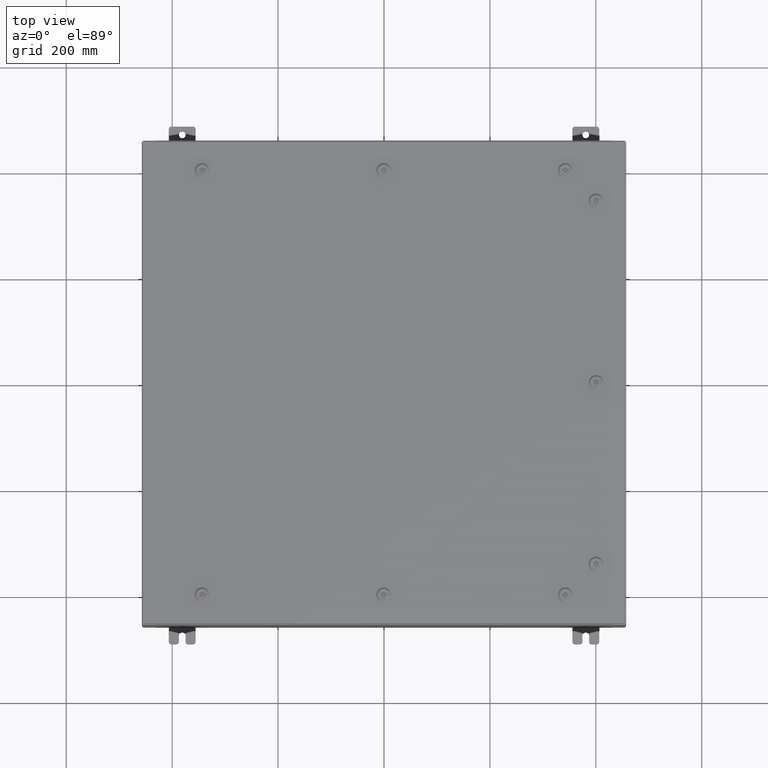
[diagram: clean part render]
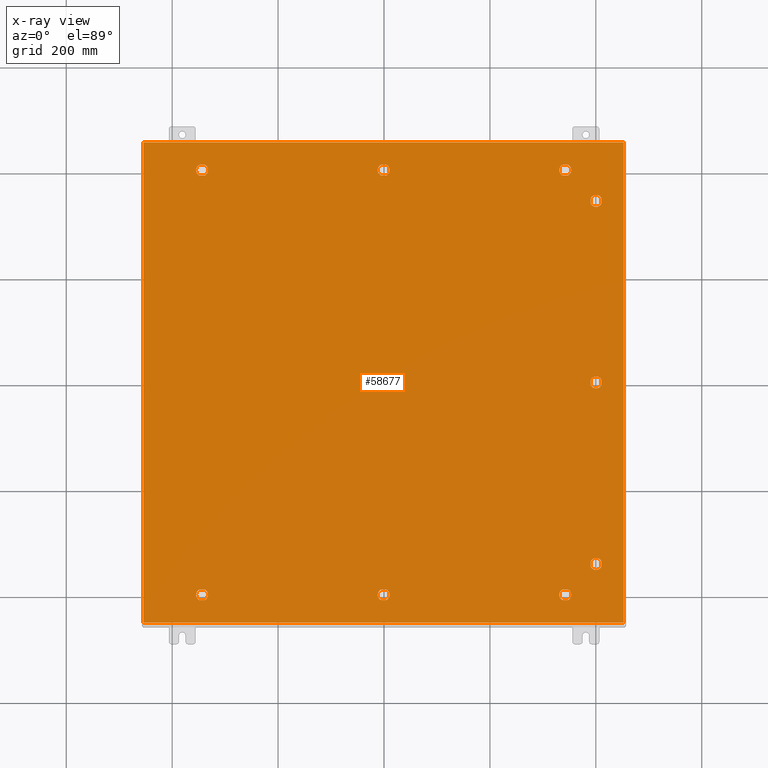
[diagram: x-ray — body ghosted, one internal face saturated and labeled with its STEP entity id]
A machine part, top view, then the same camera in x-ray: the body is ghosted and one INTERNAL B-rep face — a face not visible from any outside direction — is saturated and labeled: STEP entity #58677.
In plain terms, the highlighted planar face has unit normal (0, 0, -1).
Its self-contained STEP definition (entity closure, byte-faithful):
#23 = VERTEX_POINT ( 'NONE', #1915 ) ;
#231 = CARTESIAN_POINT ( 'NONE',  ( -13.49999999999998600, 15.78779999999999500, -0.07470000000000003000 ) ) ;
#787 = LINE ( 'NONE', #4240, #13164 ) ;
#1108 = VERTEX_POINT ( 'NONE', #17900 ) ;
#1111 = VERTEX_POINT ( 'NONE', #55005 ) ;
#1247 = VERTEX_POINT ( 'NONE', #13453 ) ;
#1248 = AXIS2_PLACEMENT_3D ( 'NONE', #33907, #2197, #39274 ) ;
#1444 = ORIENTED_EDGE ( 'NONE', *, *, #16349, .T. ) ;
#1453 = CARTESIAN_POINT ( 'NONE',  ( 17.84979999999999800, -17.84979999999999800, -0.07470000000000019700 ) ) ;
#1500 = CARTESIAN_POINT ( 'NONE',  ( -13.30054762473209400, 16.18279999999998600, -0.07470000000000003000 ) ) ;
#1589 = EDGE_CURVE ( 'NONE', #66922, #4565, #2022, .T. ) ;
#1915 = CARTESIAN_POINT ( 'NONE',  ( 13.69945237526786900, -15.39280000000000300, -0.07470000000000003000 ) ) ;
#2022 = CIRCLE ( 'NONE', #52061, 0.4424999999999983400 ) ;
#2197 = DIRECTION ( 'NONE',  ( -0.0000000000000000000, -0.0000000000000000000, 1.000000000000000000 ) ) ;
#2362 = VECTOR ( 'NONE', #53537, 39.37007874015748100 ) ;
#2403 = ORIENTED_EDGE ( 'NONE', *, *, #10582, .T. ) ;
#2415 = CARTESIAN_POINT ( 'NONE',  ( 16.18280000000000000, 0.1994523752679009100, -0.07470000000000003000 ) ) ;
#2860 = CARTESIAN_POINT ( 'NONE',  ( 16.18280000000000400, -13.69945237526790100, -0.07470000000000003000 ) ) ;
#2877 = ORIENTED_EDGE ( 'NONE', *, *, #47835, .T. ) ;
#2879 = CARTESIAN_POINT ( 'NONE',  ( 15.39280000000001500, -13.69945237526790600, -0.07470000000000003000 ) ) ;
#2928 = DIRECTION ( 'NONE',  ( 1.000000000000000000, 0.0000000000000000000, 0.0000000000000000000 ) ) ;
#3449 = CARTESIAN_POINT ( 'NONE',  ( 0.1994523752679067700, 16.18279999999998600, -0.07470000000000003000 ) ) ;
#3908 = EDGE_CURVE ( 'NONE', #4565, #1247, #15082, .T. ) ;
#3955 = CIRCLE ( 'NONE', #5712, 0.4424999999999983400 ) ;
#4078 = FACE_OUTER_BOUND ( 'NONE', #59002, .T. ) ;
#4143 = DIRECTION ( 'NONE',  ( -0.0000000000000000000, -0.0000000000000000000, 1.000000000000000000 ) ) ;
#4170 = EDGE_CURVE ( 'NONE', #39908, #4822, #22565, .T. ) ;
#4240 = CARTESIAN_POINT ( 'NONE',  ( 17.84979999999999800, 17.84980000000000200, -0.07469999999999910000 ) ) ;
#4395 = CARTESIAN_POINT ( 'NONE',  ( 16.18280000000000000, 13.69945237526790100, -0.07470000000000000300 ) ) ;
#4466 = VECTOR ( 'NONE', #67123, 39.37007874015748100 ) ;
#4565 = VERTEX_POINT ( 'NONE', #41763 ) ;
#4654 = VECTOR ( 'NONE', #39287, 39.37007874015748100 ) ;
#4747 = CARTESIAN_POINT ( 'NONE',  ( 15.78780000000000600, 13.50000000000001800, -0.07470000000000003000 ) ) ;
#4822 = VERTEX_POINT ( 'NONE', #13106 ) ;
#5535 = CIRCLE ( 'NONE', #67977, 0.4424999999999973400 ) ;
#5555 = DIRECTION ( 'NONE',  ( -1.000000000000000000, 0.0000000000000000000, 0.0000000000000000000 ) ) ;
#5682 = CARTESIAN_POINT ( 'NONE',  ( 13.49999999999998600, 15.78779999999999500, -0.07470000000000003000 ) ) ;
#5696 = ORIENTED_EDGE ( 'NONE', *, *, #46977, .T. ) ;
#5712 = AXIS2_PLACEMENT_3D ( 'NONE', #12569, #49694, #17902 ) ;
#5758 = FACE_BOUND ( 'NONE', #55815, .T. ) ;
#5874 = LINE ( 'NONE', #19224, #60551 ) ;
#6024 = EDGE_CURVE ( 'NONE', #48252, #23158, #38210, .T. ) ;
#6149 = EDGE_CURVE ( 'NONE', #29959, #21434, #33180, .T. ) ;
#6406 = EDGE_CURVE ( 'NONE', #46120, #34764, #9136, .T. ) ;
#6522 = EDGE_CURVE ( 'NONE', #44460, #52909, #46468, .T. ) ;
#7487 = DIRECTION ( 'NONE',  ( -0.0000000000000000000, -0.0000000000000000000, 1.000000000000000000 ) ) ;
#7568 = CARTESIAN_POINT ( 'NONE',  ( 0.0000000000000000000, 0.0000000000000000000, -0.07470000000000000300 ) ) ;
#7815 = CARTESIAN_POINT ( 'NONE',  ( -17.84979999999999500, 17.84980000000000200, -0.07470000000000000300 ) ) ;
#7921 = LINE ( 'NONE', #1453, #64287 ) ;
#7942 = DIRECTION ( 'NONE',  ( -0.0000000000000000000, -0.0000000000000000000, 1.000000000000000000 ) ) ;
#8169 = CIRCLE ( 'NONE', #58159, 0.4424999999999961700 ) ;
#8204 = ORIENTED_EDGE ( 'NONE', *, *, #32041, .T. ) ;
#8571 = DIRECTION ( 'NONE',  ( -1.000000000000000000, -1.095739467627832000E-014, 0.0000000000000000000 ) ) ;
#8805 = ORIENTED_EDGE ( 'NONE', *, *, #1589, .T. ) ;
#8814 = DIRECTION ( 'NONE',  ( 0.0000000000000000000, -1.000000000000000000, 0.0000000000000000000 ) ) ;
#9136 = CIRCLE ( 'NONE', #49119, 0.4424999999999973400 ) ;
#9405 = VECTOR ( 'NONE', #57345, 39.37007874015748100 ) ;
#9646 = CARTESIAN_POINT ( 'NONE',  ( -0.1994523752678689600, -15.39279999999999900, -0.07470000000000003000 ) ) ;
#10063 = DIRECTION ( 'NONE',  ( -1.000000000000000000, 0.0000000000000000000, 0.0000000000000000000 ) ) ;
#10485 = DIRECTION ( 'NONE',  ( 1.000000000000000000, 1.095739467627836300E-014, 0.0000000000000000000 ) ) ;
#10559 = DIRECTION ( 'NONE',  ( -0.0000000000000000000, -0.0000000000000000000, 1.000000000000000000 ) ) ;
#10582 = EDGE_CURVE ( 'NONE', #54201, #20133, #12077, .T. ) ;
#10653 = CARTESIAN_POINT ( 'NONE',  ( 16.18280000000000400, 13.30054762473213300, -0.07470000000000003000 ) ) ;
#10994 = DIRECTION ( 'NONE',  ( -1.000000000000000000, 0.0000000000000000000, 0.0000000000000000000 ) ) ;
#11071 = EDGE_CURVE ( 'NONE', #21434, #45436, #26991, .T. ) ;
#11616 = CARTESIAN_POINT ( 'NONE',  ( -13.30054762473210200, 15.39279999999999900, -0.07470000000000000300 ) ) ;
#11822 = EDGE_CURVE ( 'NONE', #43635, #21289, #46972, .T. ) ;
#12077 = CIRCLE ( 'NONE', #59400, 0.4424999999999983400 ) ;
#12212 = CARTESIAN_POINT ( 'NONE',  ( -13.30054762473210200, -15.39280000000000300, -0.07470000000000003000 ) ) ;
#12551 = VERTEX_POINT ( 'NONE', #50966 ) ;
#12569 = CARTESIAN_POINT ( 'NONE',  ( -13.49999999999998600, 15.78779999999999500, -0.07470000000000003000 ) ) ;
#12889 = DIRECTION ( 'NONE',  ( -1.000000000000000000, 0.0000000000000000000, -0.0000000000000000000 ) ) ;
#12944 = VECTOR ( 'NONE', #60795, 39.37007874015748100 ) ;
#13061 = EDGE_CURVE ( 'NONE', #51305, #49667, #61730, .T. ) ;
#13106 = CARTESIAN_POINT ( 'NONE',  ( -0.1994523752678689600, 15.39279999999999900, -0.07470000000000003000 ) ) ;
#13164 = VECTOR ( 'NONE', #36429, 39.37007874015748100 ) ;
#13169 = ORIENTED_EDGE ( 'NONE', *, *, #64234, .F. ) ;
#13185 = EDGE_CURVE ( 'NONE', #1111, #54415, #16137, .T. ) ;
#13233 = CIRCLE ( 'NONE', #37587, 0.4424999999999973400 ) ;
#13351 = VECTOR ( 'NONE', #34914, 39.37007874015748100 ) ;
#13453 = CARTESIAN_POINT ( 'NONE',  ( 13.69945237526786900, 15.39279999999999900, -0.07470000000000003000 ) ) ;
#13663 = CARTESIAN_POINT ( 'NONE',  ( 0.1994523752679069900, 16.18279999999998600, -0.07470000000000003000 ) ) ;
#13960 = ORIENTED_EDGE ( 'NONE', *, *, #11071, .T. ) ;
#14106 = CARTESIAN_POINT ( 'NONE',  ( 15.78780000000000600, 1.529834876451990400E-014, -0.07470000000000003000 ) ) ;
#14393 = EDGE_CURVE ( 'NONE', #23, #12551, #45113, .T. ) ;
#15048 = ORIENTED_EDGE ( 'NONE', *, *, #21098, .T. ) ;
#15082 = LINE ( 'NONE', #53888, #41669 ) ;
#15706 = AXIS2_PLACEMENT_3D ( 'NONE', #27856, #64902, #33157 ) ;
#15826 = AXIS2_PLACEMENT_3D ( 'NONE', #27508, #64549, #32805 ) ;
#15984 = CARTESIAN_POINT ( 'NONE',  ( 13.49999999999998600, 15.78779999999999500, -0.07470000000000003000 ) ) ;
#16137 = CIRCLE ( 'NONE', #51497, 0.4424999999999983400 ) ;
#16238 = AXIS2_PLACEMENT_3D ( 'NONE', #5682, #42765, #10994 ) ;
#16349 = EDGE_CURVE ( 'NONE', #21289, #37309, #66461, .T. ) ;
#16961 = CARTESIAN_POINT ( 'NONE',  ( -0.1994523752678657700, 16.18279999999999000, -0.07470000000000003000 ) ) ;
#17185 = DIRECTION ( 'NONE',  ( 0.0000000000000000000, 1.000000000000000000, 0.0000000000000000000 ) ) ;
#17273 = CARTESIAN_POINT ( 'NONE',  ( 0.1994523752678995500, -15.39279999999999900, -0.07470000000000003000 ) ) ;
#17548 = CARTESIAN_POINT ( 'NONE',  ( 16.18280000000000400, -13.69945237526790100, -0.07470000000000003000 ) ) ;
#17706 = DIRECTION ( 'NONE',  ( -0.0000000000000000000, -0.0000000000000000000, 1.000000000000000000 ) ) ;
#17822 = ORIENTED_EDGE ( 'NONE', *, *, #31326, .T. ) ;
#17900 = CARTESIAN_POINT ( 'NONE',  ( 0.4425000000000126100, -15.78779999999999500, -0.07470000000000003000 ) ) ;
#17902 = DIRECTION ( 'NONE',  ( -1.000000000000000000, 0.0000000000000000000, 0.0000000000000000000 ) ) ;
#17906 = VERTEX_POINT ( 'NONE', #13663 ) ;
#17966 = EDGE_CURVE ( 'NONE', #33553, #65414, #5874, .T. ) ;
#17991 = PLANE ( 'NONE',  #24965 ) ;
#18157 = FACE_BOUND ( 'NONE', #40510, .T. ) ;
#18236 = VECTOR ( 'NONE', #61930, 39.37007874015748100 ) ;
#18346 = VERTEX_POINT ( 'NONE', #42650 ) ;
#18708 = EDGE_CURVE ( 'NONE', #25845, #58668, #26524, .T. ) ;
#18869 = CARTESIAN_POINT ( 'NONE',  ( 1.529834876451987200E-014, 15.78779999999999500, -0.07470000000000003000 ) ) ;
#18934 = CARTESIAN_POINT ( 'NONE',  ( 13.69945237526786700, 16.18279999999999000, -0.07470000000000003000 ) ) ;
#18977 = CARTESIAN_POINT ( 'NONE',  ( 13.30054762473209400, 16.18279999999998600, -0.07470000000000003000 ) ) ;
#19224 = CARTESIAN_POINT ( 'NONE',  ( -17.84979999999999500, 17.84979999999999800, -0.07470000000000019700 ) ) ;
#19435 = DIRECTION ( 'NONE',  ( -1.000000000000000000, 0.0000000000000000000, 0.0000000000000000000 ) ) ;
#19443 = VECTOR ( 'NONE', #54929, 39.37007874015748100 ) ;
#19458 = CIRCLE ( 'NONE', #15706, 0.4424999999999983400 ) ;
#19575 = EDGE_CURVE ( 'NONE', #45066, #64958, #29737, .T. ) ;
#19804 = ORIENTED_EDGE ( 'NONE', *, *, #17966, .F. ) ;
#19812 = FACE_BOUND ( 'NONE', #64238, .T. ) ;
#20115 = CARTESIAN_POINT ( 'NONE',  ( 15.78780000000000800, -13.50000000000001800, -0.07470000000000003000 ) ) ;
#20133 = VERTEX_POINT ( 'NONE', #68700 ) ;
#20953 = CARTESIAN_POINT ( 'NONE',  ( 1.529834876451987200E-014, -15.78779999999999500, -0.07470000000000003000 ) ) ;
#21045 = CIRCLE ( 'NONE', #62297, 0.4424999999999983400 ) ;
#21098 = EDGE_CURVE ( 'NONE', #23158, #60486, #64066, .T. ) ;
#21289 = VERTEX_POINT ( 'NONE', #40035 ) ;
#21314 = DIRECTION ( 'NONE',  ( -1.000000000000000000, 0.0000000000000000000, 0.0000000000000000000 ) ) ;
#21421 = ORIENTED_EDGE ( 'NONE', *, *, #19575, .T. ) ;
#21434 = VERTEX_POINT ( 'NONE', #9646 ) ;
#21657 = CARTESIAN_POINT ( 'NONE',  ( 15.39280000000001000, -0.1994523752678671600, -0.07470000000000003000 ) ) ;
#21663 = ORIENTED_EDGE ( 'NONE', *, *, #22741, .T. ) ;
#21735 = CARTESIAN_POINT ( 'NONE',  ( -13.30054762473209400, -16.18279999999999000, -0.07470000000000003000 ) ) ;
#21796 = VECTOR ( 'NONE', #54903, 39.37007874015748100 ) ;
#22514 = ORIENTED_EDGE ( 'NONE', *, *, #13061, .T. ) ;
#22535 = CARTESIAN_POINT ( 'NONE',  ( 1.529834876451987200E-014, 15.78779999999999500, -0.07470000000000003000 ) ) ;
#22565 = CIRCLE ( 'NONE', #61808, 0.4424999999999969000 ) ;
#22658 = EDGE_LOOP ( 'NONE', ( #17822, #40426, #38925, #25021 ) ) ;
#22741 = EDGE_CURVE ( 'NONE', #31478, #66922, #42431, .T. ) ;
#22831 = EDGE_LOOP ( 'NONE', ( #1444, #56716, #43085, #30031 ) ) ;
#23116 = CARTESIAN_POINT ( 'NONE',  ( 15.78780000000000800, -13.50000000000001800, -0.07470000000000003000 ) ) ;
#23158 = VERTEX_POINT ( 'NONE', #12212 ) ;
#23199 = ORIENTED_EDGE ( 'NONE', *, *, #13185, .T. ) ;
#23308 = ORIENTED_EDGE ( 'NONE', *, *, #4170, .T. ) ;
#23849 = AXIS2_PLACEMENT_3D ( 'NONE', #20115, #57191, #25431 ) ;
#24195 = DIRECTION ( 'NONE',  ( -1.000000000000000000, 0.0000000000000000000, 0.0000000000000000000 ) ) ;
#24443 = CARTESIAN_POINT ( 'NONE',  ( 15.39280000000001400, 0.1994523752679053800, -0.07470000000000003000 ) ) ;
#24536 = EDGE_LOOP ( 'NONE', ( #63537, #5696, #21663, #8805, #64074 ) ) ;
#24633 = CIRCLE ( 'NONE', #15826, 0.4424999999999961700 ) ;
#24869 = CARTESIAN_POINT ( 'NONE',  ( -13.30054762473210200, 15.39279999999999900, -0.07470000000000003000 ) ) ;
#24965 = AXIS2_PLACEMENT_3D ( 'NONE', #7568, #44667, #12889 ) ;
#25021 = ORIENTED_EDGE ( 'NONE', *, *, #42491, .T. ) ;
#25140 = LINE ( 'NONE', #58881, #51744 ) ;
#25431 = DIRECTION ( 'NONE',  ( -1.000000000000000000, 0.0000000000000000000, 0.0000000000000000000 ) ) ;
#25481 = AXIS2_PLACEMENT_3D ( 'NONE', #27268, #64318, #32567 ) ;
#25511 = VERTEX_POINT ( 'NONE', #2860 ) ;
#25845 = VERTEX_POINT ( 'NONE', #68371 ) ;
#26071 = AXIS2_PLACEMENT_3D ( 'NONE', #4747, #41833, #10063 ) ;
#26250 = DIRECTION ( 'NONE',  ( -0.0000000000000000000, -0.0000000000000000000, 1.000000000000000000 ) ) ;
#26281 = DIRECTION ( 'NONE',  ( -1.000000000000000000, 0.0000000000000000000, 0.0000000000000000000 ) ) ;
#26283 = EDGE_CURVE ( 'NONE', #49667, #36992, #8169, .T. ) ;
#26390 = CARTESIAN_POINT ( 'NONE',  ( 15.78780000000000600, 13.50000000000001800, -0.07470000000000003000 ) ) ;
#26524 = LINE ( 'NONE', #2879, #67105 ) ;
#26637 = DIRECTION ( 'NONE',  ( -0.0000000000000000000, -0.0000000000000000000, 1.000000000000000000 ) ) ;
#26850 = ORIENTED_EDGE ( 'NONE', *, *, #6522, .T. ) ;
#26991 = CIRCLE ( 'NONE', #66111, 0.4424999999999969000 ) ;
#27268 = CARTESIAN_POINT ( 'NONE',  ( -13.49999999999998600, -15.78779999999999900, -0.07470000000000003000 ) ) ;
#27437 = DIRECTION ( 'NONE',  ( 1.000000000000000000, 0.0000000000000000000, 0.0000000000000000000 ) ) ;
#27508 = CARTESIAN_POINT ( 'NONE',  ( 13.49999999999998600, -15.78779999999999900, -0.07470000000000003000 ) ) ;
#27856 = CARTESIAN_POINT ( 'NONE',  ( 13.49999999999998600, -15.78779999999999900, -0.07470000000000003000 ) ) ;
#27868 = DIRECTION ( 'NONE',  ( -1.000000000000000000, 4.938934225833725800E-015, 0.0000000000000000000 ) ) ;
#28087 = CARTESIAN_POINT ( 'NONE',  ( 15.78780000000000600, 1.529834876451990400E-014, -0.07470000000000003000 ) ) ;
#28124 = VECTOR ( 'NONE', #62914, 39.37007874015748100 ) ;
#28148 = CARTESIAN_POINT ( 'NONE',  ( 17.84979999999999800, -17.84979999999999800, -0.07470000000000000300 ) ) ;
#28195 = CARTESIAN_POINT ( 'NONE',  ( -17.84979999999999800, -17.84979999999999800, -0.07470000000000000300 ) ) ;
#28463 = DIRECTION ( 'NONE',  ( -1.000000000000000000, 0.0000000000000000000, 0.0000000000000000000 ) ) ;
#28605 = CARTESIAN_POINT ( 'NONE',  ( 15.39280000000001400, 13.69945237526790600, -0.07470000000000003000 ) ) ;
#28642 = EDGE_CURVE ( 'NONE', #56011, #1108, #5535, .T. ) ;
#28653 = LINE ( 'NONE', #42258, #30274 ) ;
#29013 = CARTESIAN_POINT ( 'NONE',  ( 15.39280000000001400, 0.1994523752679064900, -0.07470000000000003000 ) ) ;
#29068 = CARTESIAN_POINT ( 'NONE',  ( 17.84979999999999800, 17.84980000000000200, -0.07470000000000000300 ) ) ;
#29314 = VECTOR ( 'NONE', #54660, 39.37007874015748100 ) ;
#29737 = LINE ( 'NONE', #31170, #28124 ) ;
#29745 = DIRECTION ( 'NONE',  ( -1.095739467627836300E-014, -1.000000000000000000, 0.0000000000000000000 ) ) ;
#29959 = VERTEX_POINT ( 'NONE', #61939 ) ;
#30031 = ORIENTED_EDGE ( 'NONE', *, *, #11822, .T. ) ;
#30055 = CARTESIAN_POINT ( 'NONE',  ( 13.30054762473210200, -15.39280000000000300, -0.07470000000000003000 ) ) ;
#30274 = VECTOR ( 'NONE', #10485, 39.37007874015748100 ) ;
#30391 = EDGE_CURVE ( 'NONE', #34764, #17906, #63400, .T. ) ;
#30459 = CIRCLE ( 'NONE', #32675, 0.4424999999999983400 ) ;
#31170 = CARTESIAN_POINT ( 'NONE',  ( -13.30054762473209400, 16.18279999999998600, -0.07470000000000003000 ) ) ;
#31326 = EDGE_CURVE ( 'NONE', #34369, #25845, #21045, .T. ) ;
#31478 = VERTEX_POINT ( 'NONE', #18934 ) ;
#31701 = DIRECTION ( 'NONE',  ( -1.000000000000000000, 0.0000000000000000000, 0.0000000000000000000 ) ) ;
#32008 = CIRCLE ( 'NONE', #1248, 0.4424999999999961700 ) ;
#32041 = EDGE_CURVE ( 'NONE', #12551, #51305, #19458, .T. ) ;
#32241 = FACE_BOUND ( 'NONE', #49702, .T. ) ;
#32567 = DIRECTION ( 'NONE',  ( -1.000000000000000000, 0.0000000000000000000, 0.0000000000000000000 ) ) ;
#32675 = AXIS2_PLACEMENT_3D ( 'NONE', #39251, #7487, #44585 ) ;
#32805 = DIRECTION ( 'NONE',  ( -1.000000000000000000, 0.0000000000000000000, 0.0000000000000000000 ) ) ;
#33044 = ORIENTED_EDGE ( 'NONE', *, *, #42345, .T. ) ;
#33157 = DIRECTION ( 'NONE',  ( -1.000000000000000000, 0.0000000000000000000, 0.0000000000000000000 ) ) ;
#33180 = LINE ( 'NONE', #17273, #61365 ) ;
#33253 = DIRECTION ( 'NONE',  ( -1.000000000000000000, 0.0000000000000000000, 0.0000000000000000000 ) ) ;
#33401 = DIRECTION ( 'NONE',  ( -1.000000000000000000, 1.776356839400250500E-015, 0.0000000000000000000 ) ) ;
#33552 = CARTESIAN_POINT ( 'NONE',  ( 13.30054762473209400, 16.18279999999998600, -0.07470000000000000300 ) ) ;
#33553 = VERTEX_POINT ( 'NONE', #7815 ) ;
#33905 = FACE_BOUND ( 'NONE', #22831, .T. ) ;
#33907 = CARTESIAN_POINT ( 'NONE',  ( 13.49999999999998600, 15.78779999999999500, -0.07470000000000003000 ) ) ;
#34369 = VERTEX_POINT ( 'NONE', #66015 ) ;
#34499 = CARTESIAN_POINT ( 'NONE',  ( -13.69945237526786900, 15.39279999999999900, -0.07470000000000003000 ) ) ;
#34764 = VERTEX_POINT ( 'NONE', #52395 ) ;
#34914 = DIRECTION ( 'NONE',  ( -1.000000000000000000, 1.095739467627836300E-014, 0.0000000000000000000 ) ) ;
#34995 = EDGE_CURVE ( 'NONE', #52909, #47862, #58780, .T. ) ;
#35642 = CARTESIAN_POINT ( 'NONE',  ( -13.69945237526786700, 16.18279999999999000, -0.07470000000000003000 ) ) ;
#35782 = LINE ( 'NONE', #45355, #48293 ) ;
#35871 = CARTESIAN_POINT ( 'NONE',  ( 13.49999999999998600, -15.78779999999999900, -0.07470000000000003000 ) ) ;
#36429 = DIRECTION ( 'NONE',  ( -1.000000000000000000, -0.0000000000000000000, -0.0000000000000000000 ) ) ;
#36557 = EDGE_CURVE ( 'NONE', #60544, #43635, #38048, .T. ) ;
#36992 = VERTEX_POINT ( 'NONE', #65840 ) ;
#37207 = CIRCLE ( 'NONE', #23849, 0.4424999999999961700 ) ;
#37285 = DIRECTION ( 'NONE',  ( -0.0000000000000000000, -0.0000000000000000000, 1.000000000000000000 ) ) ;
#37309 = VERTEX_POINT ( 'NONE', #10653 ) ;
#37587 = AXIS2_PLACEMENT_3D ( 'NONE', #20953, #58022, #26281 ) ;
#37810 = DIRECTION ( 'NONE',  ( 1.000000000000000000, -0.0000000000000000000, -0.0000000000000000000 ) ) ;
#38048 = CIRCLE ( 'NONE', #26071, 0.4424999999999961700 ) ;
#38210 = CIRCLE ( 'NONE', #25481, 0.4424999999999983400 ) ;
#38925 = ORIENTED_EDGE ( 'NONE', *, *, #64974, .T. ) ;
#39251 = CARTESIAN_POINT ( 'NONE',  ( -13.49999999999998600, -15.78779999999999900, -0.07470000000000003000 ) ) ;
#39274 = DIRECTION ( 'NONE',  ( -1.000000000000000000, 0.0000000000000000000, 0.0000000000000000000 ) ) ;
#39287 = DIRECTION ( 'NONE',  ( -1.095739467627838000E-014, -1.000000000000000000, 0.0000000000000000000 ) ) ;
#39530 = ORIENTED_EDGE ( 'NONE', *, *, #59364, .T. ) ;
#39672 = CARTESIAN_POINT ( 'NONE',  ( 1.529834876451987200E-014, 15.78779999999999500, -0.07470000000000003000 ) ) ;
#39871 = EDGE_LOOP ( 'NONE', ( #2403, #43072, #23199, #41338 ) ) ;
#39908 = VERTEX_POINT ( 'NONE', #16961 ) ;
#40035 = CARTESIAN_POINT ( 'NONE',  ( 15.39280000000001000, 13.30054762473213400, -0.07470000000000003000 ) ) ;
#40074 = ORIENTED_EDGE ( 'NONE', *, *, #65215, .T. ) ;
#40118 = ORIENTED_EDGE ( 'NONE', *, *, #26283, .T. ) ;
#40426 = ORIENTED_EDGE ( 'NONE', *, *, #18708, .T. ) ;
#40510 = EDGE_LOOP ( 'NONE', ( #23308, #52811, #53388, #67811, #67272 ) ) ;
#41221 = DIRECTION ( 'NONE',  ( -1.000000000000000000, 0.0000000000000000000, 0.0000000000000000000 ) ) ;
#41325 = ORIENTED_EDGE ( 'NONE', *, *, #43155, .F. ) ;
#41338 = ORIENTED_EDGE ( 'NONE', *, *, #41757, .T. ) ;
#41669 = VECTOR ( 'NONE', #27437, 39.37007874015748100 ) ;
#41757 = EDGE_CURVE ( 'NONE', #54415, #54201, #50984, .T. ) ;
#41763 = CARTESIAN_POINT ( 'NONE',  ( 13.30054762473210200, 15.39279999999999900, -0.07470000000000003000 ) ) ;
#41833 = DIRECTION ( 'NONE',  ( -0.0000000000000000000, -0.0000000000000000000, 1.000000000000000000 ) ) ;
#42258 = CARTESIAN_POINT ( 'NONE',  ( 0.1994523752679067700, -16.18279999999998600, -0.07470000000000003000 ) ) ;
#42340 = CARTESIAN_POINT ( 'NONE',  ( 1.529834876451987200E-014, -15.78779999999999500, -0.07470000000000003000 ) ) ;
#42345 = EDGE_CURVE ( 'NONE', #64958, #44460, #60854, .T. ) ;
#42431 = LINE ( 'NONE', #18977, #53235 ) ;
#42441 = ORIENTED_EDGE ( 'NONE', *, *, #51481, .F. ) ;
#42491 = EDGE_CURVE ( 'NONE', #25511, #34369, #43489, .T. ) ;
#42650 = CARTESIAN_POINT ( 'NONE',  ( -13.30054762473209400, -16.18279999999999000, -0.07470000000000000300 ) ) ;
#42724 = CARTESIAN_POINT ( 'NONE',  ( 13.30054762473209400, -16.18279999999999000, -0.07470000000000003000 ) ) ;
#42765 = DIRECTION ( 'NONE',  ( -0.0000000000000000000, -0.0000000000000000000, 1.000000000000000000 ) ) ;
#43072 = ORIENTED_EDGE ( 'NONE', *, *, #49083, .T. ) ;
#43085 = ORIENTED_EDGE ( 'NONE', *, *, #36557, .T. ) ;
#43155 = EDGE_CURVE ( 'NONE', #65414, #43625, #25140, .T. ) ;
#43236 = CARTESIAN_POINT ( 'NONE',  ( -13.69945237526786700, -16.18279999999999700, -0.07470000000000003000 ) ) ;
#43489 = LINE ( 'NONE', #17548, #29314 ) ;
#43625 = VERTEX_POINT ( 'NONE', #28148 ) ;
#43635 = VERTEX_POINT ( 'NONE', #59890 ) ;
#43698 = AXIS2_PLACEMENT_3D ( 'NONE', #22535, #59606, #27868 ) ;
#44460 = VERTEX_POINT ( 'NONE', #34499 ) ;
#44585 = DIRECTION ( 'NONE',  ( -1.000000000000000000, 0.0000000000000000000, 0.0000000000000000000 ) ) ;
#44667 = DIRECTION ( 'NONE',  ( 0.0000000000000000000, 0.0000000000000000000, -1.000000000000000000 ) ) ;
#44983 = VERTEX_POINT ( 'NONE', #43236 ) ;
#45051 = DIRECTION ( 'NONE',  ( -1.000000000000000000, 0.0000000000000000000, 0.0000000000000000000 ) ) ;
#45066 = VERTEX_POINT ( 'NONE', #1500 ) ;
#45113 = LINE ( 'NONE', #30055, #4466 ) ;
#45155 = EDGE_LOOP ( 'NONE', ( #13960, #61284, #63643, #51748, #67455 ) ) ;
#45355 = CARTESIAN_POINT ( 'NONE',  ( 0.1994523752678995500, 15.39279999999999900, -0.07470000000000003000 ) ) ;
#45436 = VERTEX_POINT ( 'NONE', #52586 ) ;
#45604 = AXIS2_PLACEMENT_3D ( 'NONE', #57997, #26250, #63320 ) ;
#46120 = VERTEX_POINT ( 'NONE', #54027 ) ;
#46176 = CARTESIAN_POINT ( 'NONE',  ( 13.94249999999998300, 15.78779999999999500, -0.07470000000000003000 ) ) ;
#46385 = VERTEX_POINT ( 'NONE', #29068 ) ;
#46386 = FACE_BOUND ( 'NONE', #24536, .T. ) ;
#46468 = LINE ( 'NONE', #24869, #18236 ) ;
#46972 = LINE ( 'NONE', #28605, #4654 ) ;
#46977 = EDGE_CURVE ( 'NONE', #62762, #31478, #51279, .T. ) ;
#47245 = EDGE_CURVE ( 'NONE', #18346, #48252, #30459, .T. ) ;
#47688 = DIRECTION ( 'NONE',  ( -1.000000000000000000, 0.0000000000000000000, 0.0000000000000000000 ) ) ;
#47835 = EDGE_CURVE ( 'NONE', #36992, #23, #24633, .T. ) ;
#47862 = VERTEX_POINT ( 'NONE', #59471 ) ;
#48066 = FACE_BOUND ( 'NONE', #39871, .T. ) ;
#48252 = VERTEX_POINT ( 'NONE', #52330 ) ;
#48293 = VECTOR ( 'NONE', #2928, 39.37007874015748100 ) ;
#48595 = AXIS2_PLACEMENT_3D ( 'NONE', #49505, #17706, #54806 ) ;
#48907 = EDGE_CURVE ( 'NONE', #1247, #62762, #32008, .T. ) ;
#49083 = EDGE_CURVE ( 'NONE', #20133, #1111, #55270, .T. ) ;
#49119 = AXIS2_PLACEMENT_3D ( 'NONE', #18869, #55954, #24195 ) ;
#49348 = VECTOR ( 'NONE', #29745, 39.37007874015748100 ) ;
#49505 = CARTESIAN_POINT ( 'NONE',  ( -13.49999999999998600, -15.78779999999999900, -0.07470000000000003000 ) ) ;
#49590 = CARTESIAN_POINT ( 'NONE',  ( -13.30054762473210200, -15.39280000000000300, -0.07470000000000003000 ) ) ;
#49626 = CARTESIAN_POINT ( 'NONE',  ( 13.30054762473209400, -16.18279999999999000, -0.07470000000000003000 ) ) ;
#49667 = VERTEX_POINT ( 'NONE', #59566 ) ;
#49694 = DIRECTION ( 'NONE',  ( -0.0000000000000000000, -0.0000000000000000000, 1.000000000000000000 ) ) ;
#49702 = EDGE_LOOP ( 'NONE', ( #33044, #26850, #56737, #65196, #21421 ) ) ;
#49785 = CARTESIAN_POINT ( 'NONE',  ( 15.39280000000001500, -13.69945237526790600, -0.07470000000000000300 ) ) ;
#50639 = DIRECTION ( 'NONE',  ( 1.095739467627838000E-014, -1.000000000000000000, 0.0000000000000000000 ) ) ;
#50966 = CARTESIAN_POINT ( 'NONE',  ( 13.30054762473210200, -15.39280000000000300, -0.07470000000000000300 ) ) ;
#50984 = LINE ( 'NONE', #24443, #49348 ) ;
#51220 = EDGE_CURVE ( 'NONE', #45436, #56011, #28653, .T. ) ;
#51231 = DIRECTION ( 'NONE',  ( -0.0000000000000000000, -0.0000000000000000000, 1.000000000000000000 ) ) ;
#51279 = CIRCLE ( 'NONE', #16238, 0.4424999999999961700 ) ;
#51305 = VERTEX_POINT ( 'NONE', #42724 ) ;
#51481 = EDGE_CURVE ( 'NONE', #43625, #46385, #7921, .T. ) ;
#51497 = AXIS2_PLACEMENT_3D ( 'NONE', #14106, #51231, #19435 ) ;
#51742 = LINE ( 'NONE', #52079, #9405 ) ;
#51744 = VECTOR ( 'NONE', #37810, 39.37007874015748100 ) ;
#51748 = ORIENTED_EDGE ( 'NONE', *, *, #63339, .T. ) ;
#52061 = AXIS2_PLACEMENT_3D ( 'NONE', #15984, #53122, #21314 ) ;
#52079 = CARTESIAN_POINT ( 'NONE',  ( 16.18280000000000000, 13.69945237526790100, -0.07470000000000003000 ) ) ;
#52330 = CARTESIAN_POINT ( 'NONE',  ( -13.05749999999998900, -15.78779999999999900, -0.07470000000000003000 ) ) ;
#52395 = CARTESIAN_POINT ( 'NONE',  ( 0.4425000000000126100, 15.78779999999999500, -0.07470000000000003000 ) ) ;
#52586 = CARTESIAN_POINT ( 'NONE',  ( -0.1994523752678657700, -16.18279999999999000, -0.07470000000000003000 ) ) ;
#52811 = ORIENTED_EDGE ( 'NONE', *, *, #61083, .T. ) ;
#52909 = VERTEX_POINT ( 'NONE', #11616 ) ;
#53122 = DIRECTION ( 'NONE',  ( -0.0000000000000000000, -0.0000000000000000000, 1.000000000000000000 ) ) ;
#53235 = VECTOR ( 'NONE', #8571, 39.37007874015748100 ) ;
#53388 = ORIENTED_EDGE ( 'NONE', *, *, #6406, .T. ) ;
#53537 = DIRECTION ( 'NONE',  ( 1.000000000000000000, 1.095739467627832000E-014, 0.0000000000000000000 ) ) ;
#53888 = CARTESIAN_POINT ( 'NONE',  ( 13.30054762473210200, 15.39279999999999900, -0.07470000000000003000 ) ) ;
#54027 = CARTESIAN_POINT ( 'NONE',  ( 0.1994523752678995500, 15.39279999999999900, -0.07470000000000000300 ) ) ;
#54057 = LINE ( 'NONE', #3449, #13351 ) ;
#54201 = VERTEX_POINT ( 'NONE', #21657 ) ;
#54415 = VERTEX_POINT ( 'NONE', #29013 ) ;
#54660 = DIRECTION ( 'NONE',  ( 5.478697338139220100E-015, 1.000000000000000000, 0.0000000000000000000 ) ) ;
#54806 = DIRECTION ( 'NONE',  ( -1.000000000000000000, 0.0000000000000000000, 0.0000000000000000000 ) ) ;
#54903 = DIRECTION ( 'NONE',  ( -1.000000000000000000, 0.0000000000000000000, 0.0000000000000000000 ) ) ;
#54929 = DIRECTION ( 'NONE',  ( 1.000000000000000000, -1.095739467627832000E-014, 0.0000000000000000000 ) ) ;
#55005 = CARTESIAN_POINT ( 'NONE',  ( 16.18280000000000400, 0.1994523752679009100, -0.07470000000000000300 ) ) ;
#55270 = LINE ( 'NONE', #2415, #12944 ) ;
#55815 = EDGE_LOOP ( 'NONE', ( #39530, #40074, #68702, #68148, #15048 ) ) ;
#55819 = CIRCLE ( 'NONE', #48595, 0.4424999999999961700 ) ;
#55954 = DIRECTION ( 'NONE',  ( -0.0000000000000000000, -0.0000000000000000000, 1.000000000000000000 ) ) ;
#56011 = VERTEX_POINT ( 'NONE', #65517 ) ;
#56226 = EDGE_CURVE ( 'NONE', #17906, #39908, #54057, .T. ) ;
#56716 = ORIENTED_EDGE ( 'NONE', *, *, #59098, .T. ) ;
#56737 = ORIENTED_EDGE ( 'NONE', *, *, #34995, .T. ) ;
#57191 = DIRECTION ( 'NONE',  ( -0.0000000000000000000, -0.0000000000000000000, 1.000000000000000000 ) ) ;
#57337 = AXIS2_PLACEMENT_3D ( 'NONE', #26390, #63447, #31701 ) ;
#57345 = DIRECTION ( 'NONE',  ( -5.478697338139220100E-015, 1.000000000000000000, 0.0000000000000000000 ) ) ;
#57997 = CARTESIAN_POINT ( 'NONE',  ( -13.49999999999998600, 15.78779999999999500, -0.07470000000000003000 ) ) ;
#58022 = DIRECTION ( 'NONE',  ( -0.0000000000000000000, -0.0000000000000000000, 1.000000000000000000 ) ) ;
#58159 = AXIS2_PLACEMENT_3D ( 'NONE', #35871, #4143, #41221 ) ;
#58371 = CARTESIAN_POINT ( 'NONE',  ( 1.529834876451987200E-014, -15.78779999999999500, -0.07470000000000003000 ) ) ;
#58668 = VERTEX_POINT ( 'NONE', #49785 ) ;
#58677 = ADVANCED_FACE ( 'NONE', ( #62077, #33905, #48066, #19812, #5758, #60434, #46386, #32241, #18157, #4078 ), #17991, .T. ) ;
#58738 = LINE ( 'NONE', #21735, #2362 ) ;
#58780 = CIRCLE ( 'NONE', #45604, 0.4424999999999983400 ) ;
#58881 = CARTESIAN_POINT ( 'NONE',  ( -17.84979999999999800, -17.84979999999999800, -0.07470000000000019700 ) ) ;
#59002 = EDGE_LOOP ( 'NONE', ( #42441, #41325, #19804, #13169 ) ) ;
#59098 = EDGE_CURVE ( 'NONE', #37309, #60544, #51742, .T. ) ;
#59364 = EDGE_CURVE ( 'NONE', #60486, #44983, #55819, .T. ) ;
#59400 = AXIS2_PLACEMENT_3D ( 'NONE', #28087, #65133, #33401 ) ;
#59471 = CARTESIAN_POINT ( 'NONE',  ( -13.05749999999998900, 15.78779999999999500, -0.07470000000000003000 ) ) ;
#59566 = CARTESIAN_POINT ( 'NONE',  ( 13.69945237526786700, -16.18279999999999700, -0.07470000000000003000 ) ) ;
#59606 = DIRECTION ( 'NONE',  ( -0.0000000000000000000, -0.0000000000000000000, 1.000000000000000000 ) ) ;
#59890 = CARTESIAN_POINT ( 'NONE',  ( 15.39280000000001400, 13.69945237526790600, -0.07470000000000003000 ) ) ;
#60196 = DIRECTION ( 'NONE',  ( -0.0000000000000000000, -0.0000000000000000000, 1.000000000000000000 ) ) ;
#60434 = FACE_BOUND ( 'NONE', #45155, .T. ) ;
#60486 = VERTEX_POINT ( 'NONE', #68058 ) ;
#60544 = VERTEX_POINT ( 'NONE', #4395 ) ;
#60551 = VECTOR ( 'NONE', #8814, 39.37007874015748100 ) ;
#60795 = DIRECTION ( 'NONE',  ( -5.478697338139235000E-015, 1.000000000000000000, 0.0000000000000000000 ) ) ;
#60854 = CIRCLE ( 'NONE', #67580, 0.4424999999999961700 ) ;
#61083 = EDGE_CURVE ( 'NONE', #4822, #46120, #35782, .T. ) ;
#61284 = ORIENTED_EDGE ( 'NONE', *, *, #51220, .T. ) ;
#61365 = VECTOR ( 'NONE', #33253, 39.37007874015748100 ) ;
#61730 = LINE ( 'NONE', #49626, #19443 ) ;
#61808 = AXIS2_PLACEMENT_3D ( 'NONE', #39672, #7942, #45051 ) ;
#61930 = DIRECTION ( 'NONE',  ( 1.000000000000000000, 0.0000000000000000000, 0.0000000000000000000 ) ) ;
#61939 = CARTESIAN_POINT ( 'NONE',  ( 0.1994523752678993800, -15.39279999999999900, -0.07470000000000003000 ) ) ;
#62077 = FACE_BOUND ( 'NONE', #22658, .T. ) ;
#62297 = AXIS2_PLACEMENT_3D ( 'NONE', #23116, #60196, #28463 ) ;
#62762 = VERTEX_POINT ( 'NONE', #46176 ) ;
#62914 = DIRECTION ( 'NONE',  ( -1.000000000000000000, 1.095739467627832000E-014, 0.0000000000000000000 ) ) ;
#63320 = DIRECTION ( 'NONE',  ( -1.000000000000000000, 0.0000000000000000000, 0.0000000000000000000 ) ) ;
#63339 = EDGE_CURVE ( 'NONE', #1108, #29959, #13233, .T. ) ;
#63400 = CIRCLE ( 'NONE', #43698, 0.4424999999999973400 ) ;
#63447 = DIRECTION ( 'NONE',  ( -0.0000000000000000000, -0.0000000000000000000, 1.000000000000000000 ) ) ;
#63537 = ORIENTED_EDGE ( 'NONE', *, *, #48907, .T. ) ;
#63643 = ORIENTED_EDGE ( 'NONE', *, *, #28642, .T. ) ;
#63675 = DIRECTION ( 'NONE',  ( -1.000000000000000000, 0.0000000000000000000, 0.0000000000000000000 ) ) ;
#64066 = LINE ( 'NONE', #49590, #21796 ) ;
#64074 = ORIENTED_EDGE ( 'NONE', *, *, #3908, .T. ) ;
#64234 = EDGE_CURVE ( 'NONE', #46385, #33553, #787, .T. ) ;
#64238 = EDGE_LOOP ( 'NONE', ( #40118, #2877, #66068, #8204, #22514 ) ) ;
#64287 = VECTOR ( 'NONE', #17185, 39.37007874015748100 ) ;
#64318 = DIRECTION ( 'NONE',  ( -0.0000000000000000000, -0.0000000000000000000, 1.000000000000000000 ) ) ;
#64549 = DIRECTION ( 'NONE',  ( -0.0000000000000000000, -0.0000000000000000000, 1.000000000000000000 ) ) ;
#64902 = DIRECTION ( 'NONE',  ( -0.0000000000000000000, -0.0000000000000000000, 1.000000000000000000 ) ) ;
#64958 = VERTEX_POINT ( 'NONE', #35642 ) ;
#64974 = EDGE_CURVE ( 'NONE', #58668, #25511, #37207, .T. ) ;
#65133 = DIRECTION ( 'NONE',  ( -0.0000000000000000000, -0.0000000000000000000, 1.000000000000000000 ) ) ;
#65196 = ORIENTED_EDGE ( 'NONE', *, *, #66169, .T. ) ;
#65215 = EDGE_CURVE ( 'NONE', #44983, #18346, #58738, .T. ) ;
#65414 = VERTEX_POINT ( 'NONE', #28195 ) ;
#65517 = CARTESIAN_POINT ( 'NONE',  ( 0.1994523752679070700, -16.18279999999998600, -0.07470000000000000300 ) ) ;
#65840 = CARTESIAN_POINT ( 'NONE',  ( 13.94249999999998300, -15.78779999999999900, -0.07470000000000003000 ) ) ;
#66015 = CARTESIAN_POINT ( 'NONE',  ( 16.18280000000000700, -13.30054762473213300, -0.07470000000000003000 ) ) ;
#66068 = ORIENTED_EDGE ( 'NONE', *, *, #14393, .T. ) ;
#66111 = AXIS2_PLACEMENT_3D ( 'NONE', #42340, #10559, #47688 ) ;
#66169 = EDGE_CURVE ( 'NONE', #47862, #45066, #3955, .T. ) ;
#66461 = CIRCLE ( 'NONE', #57337, 0.4424999999999983400 ) ;
#66922 = VERTEX_POINT ( 'NONE', #33552 ) ;
#67105 = VECTOR ( 'NONE', #50639, 39.37007874015748100 ) ;
#67123 = DIRECTION ( 'NONE',  ( -1.000000000000000000, 0.0000000000000000000, 0.0000000000000000000 ) ) ;
#67272 = ORIENTED_EDGE ( 'NONE', *, *, #56226, .T. ) ;
#67455 = ORIENTED_EDGE ( 'NONE', *, *, #6149, .T. ) ;
#67580 = AXIS2_PLACEMENT_3D ( 'NONE', #231, #37285, #5555 ) ;
#67811 = ORIENTED_EDGE ( 'NONE', *, *, #30391, .T. ) ;
#67977 = AXIS2_PLACEMENT_3D ( 'NONE', #58371, #26637, #63675 ) ;
#68058 = CARTESIAN_POINT ( 'NONE',  ( -13.69945237526786900, -15.39280000000000300, -0.07470000000000003000 ) ) ;
#68148 = ORIENTED_EDGE ( 'NONE', *, *, #6024, .T. ) ;
#68371 = CARTESIAN_POINT ( 'NONE',  ( 15.39280000000001200, -13.30054762473213400, -0.07470000000000003000 ) ) ;
#68700 = CARTESIAN_POINT ( 'NONE',  ( 16.18280000000000400, -0.1994523752678676000, -0.07470000000000003000 ) ) ;
#68702 = ORIENTED_EDGE ( 'NONE', *, *, #47245, .T. ) ;